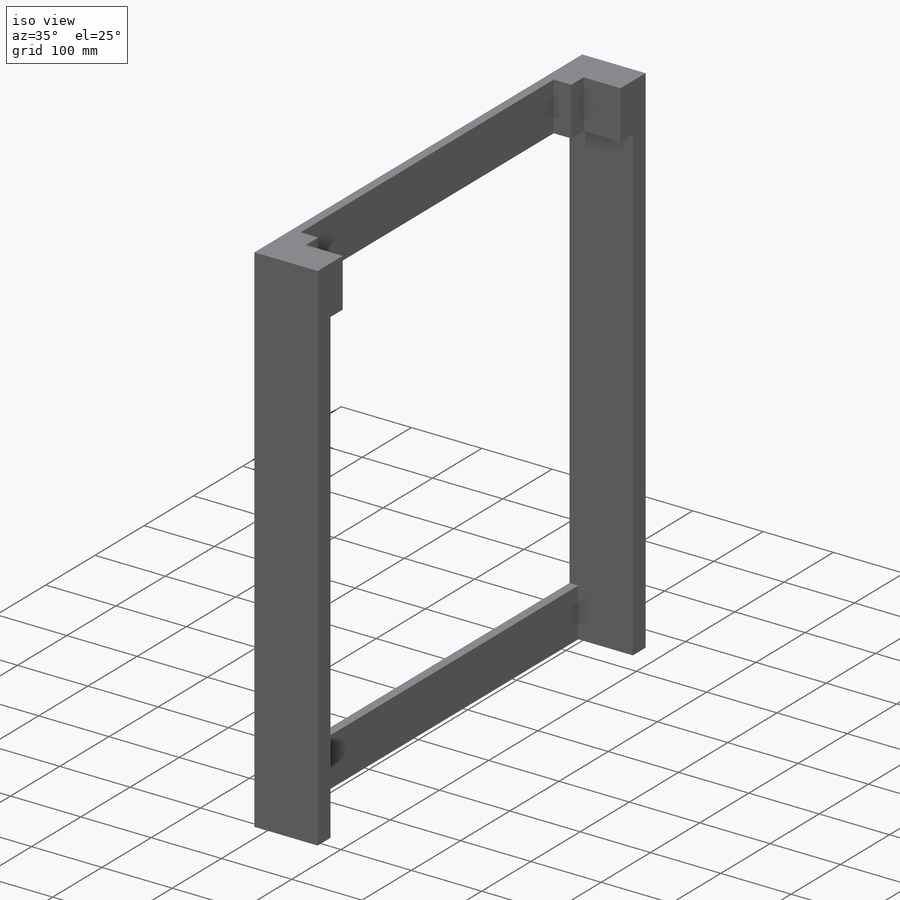
[diagram: iso view]
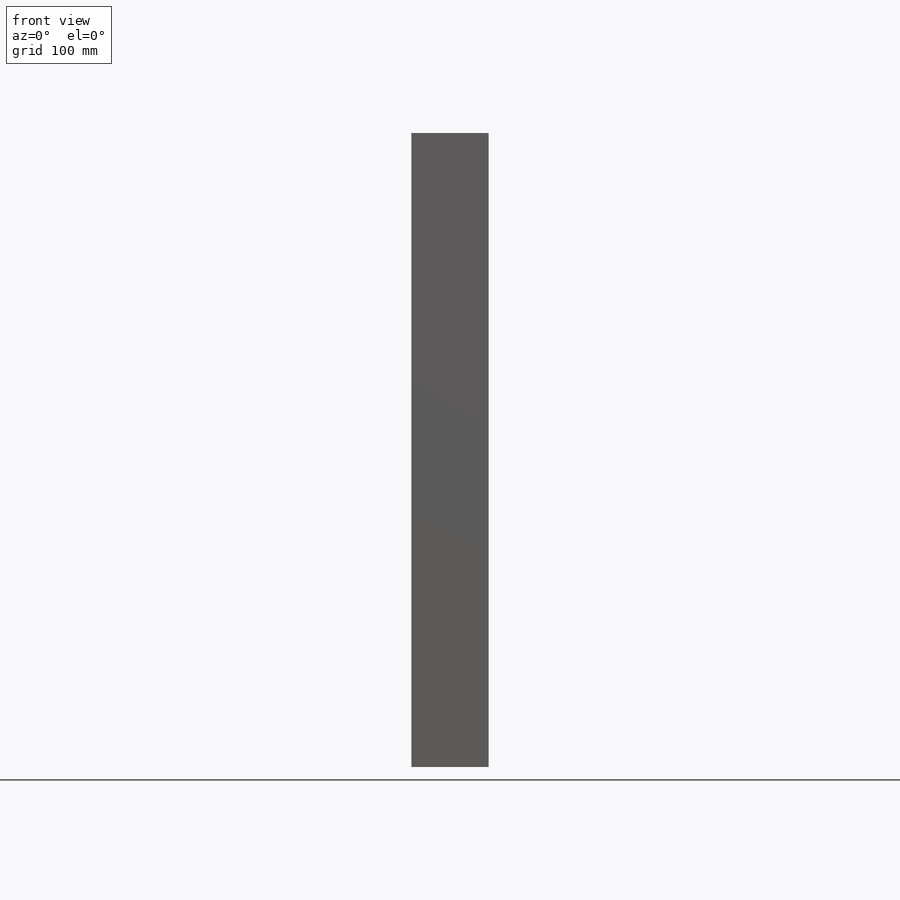
[diagram: front view]
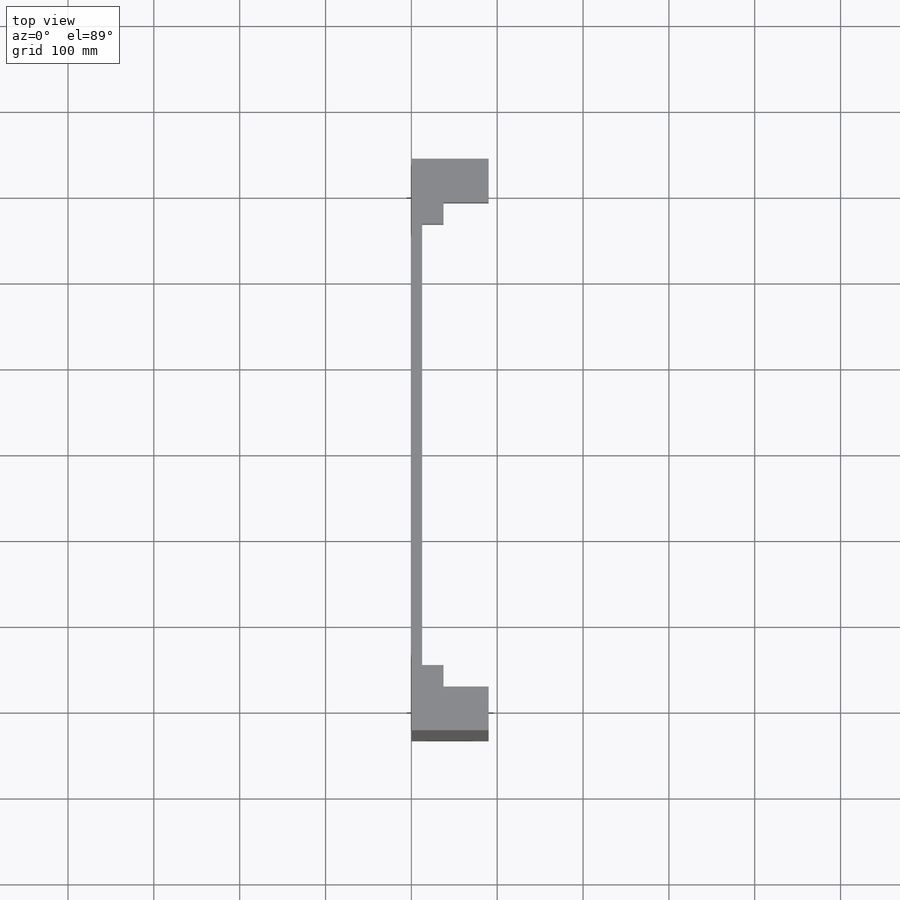
[diagram: top view]
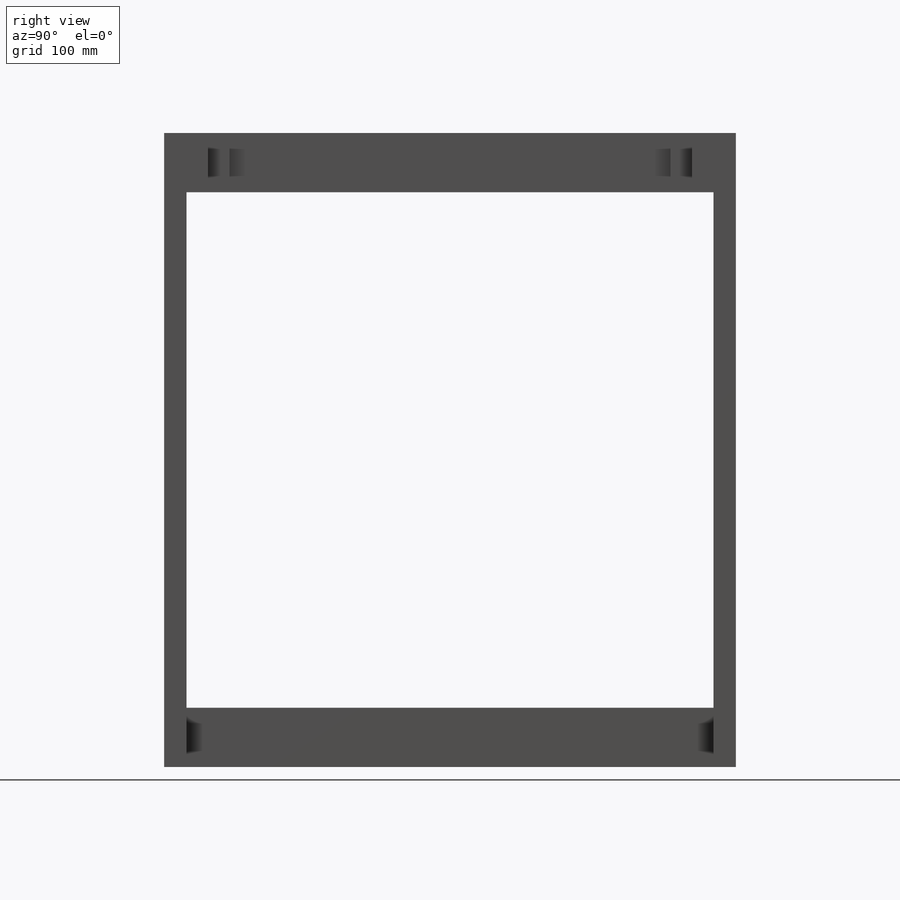
[diagram: right view]
SOLIDWORKS PART (.sldprt)
format: sldprt  version: not decoded by parser v0  size: 286,208 bytes
history: native  units: mm
features: sketch x5, extrude x4, material x1, plane x1 (+11 scaffold rows collapsed)
feature tree (22):
  scaffold x11  (default folders/planes/origin — collapsed)
  material  "Pine"
  sketch  "Sketch1"  dims[D1=700.0mm D2=1400.0mm D3=700.0mm D4=350.0mm]
  plane  "Plane1"  Offset=900mm
  sketch  "Sketch3"  dims[c1.D1=26.0mm c1.D2=90.0mm c2.D1=26.0mm c2.D2=90.0mm c3.D1=26.0mm c3.D2=90.0mm c3.D3=17.0mm c3.D4=17.0mm]
  extrude  "Boss-Extrude1"  Depth=31.5mm
  sketch  "Sketch5"  dims[D1=12.5mm D2=69.0mm D3=700.0mm]
  extrude  "Boss-Extrude2"  [1 undecoded]
  sketch  "Sketch7"  dims[D1=25.0mm]
  extrude  "Boss-Extrude3"  [1 undecoded]
  sketch  "Sketch8"  dims[D1=40.0mm]
  extrude  "Boss-Extrude4"  [1 undecoded]
decode coverage: 6 of 9 modeling features carry decoded parameters
note: 3 parameter values undecoded
summary: no parameter record found for 3 features
note: suppression state not decoded; provenance and decode notes live in map.json
